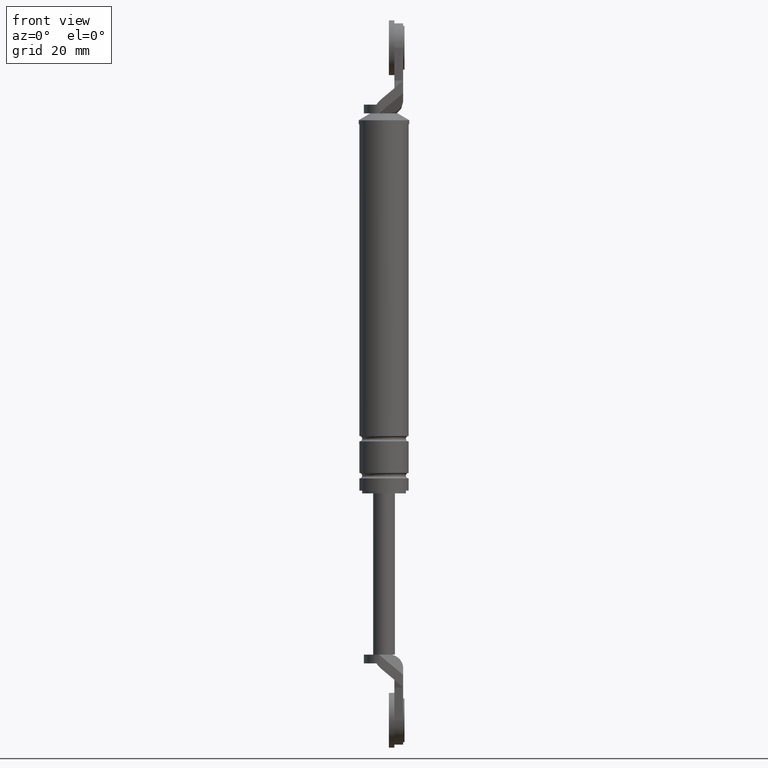
[diagram: clean part render]
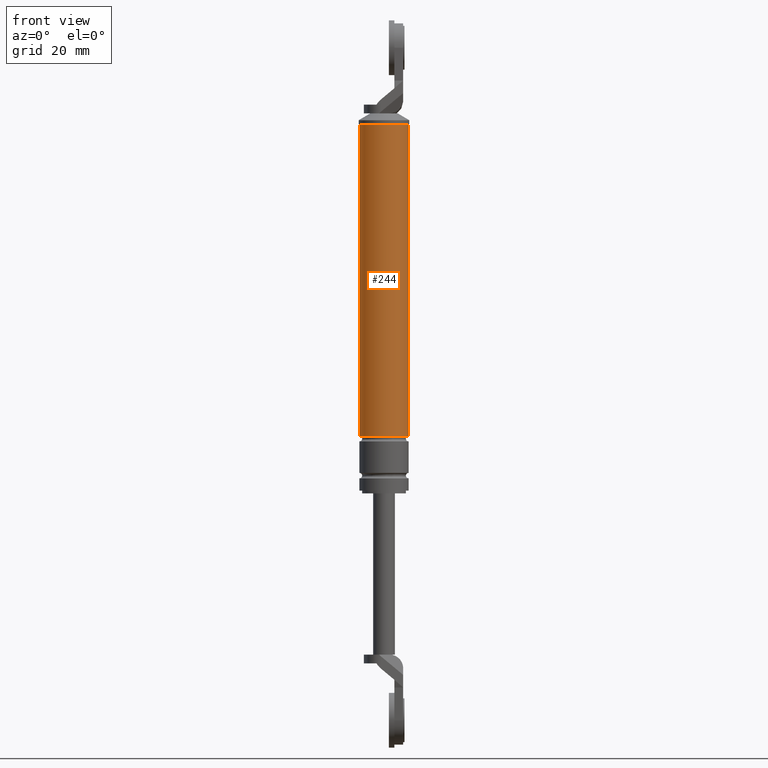
[diagram: same view with one face highlighted and labeled with its STEP entity id]
A machine part, front view. The second image highlights one B-rep face of the part: STEP entity #244.
In plain terms, the highlighted cylindrical surface (edge-blend (fillet) strip) has radius 9 mm, axis along (0, 0, 1).
Its self-contained STEP definition (entity closure, byte-faithful):
#244=ADVANCED_FACE('',(#695),#694,.T.);
#694=CYLINDRICAL_SURFACE('',#1407,9.00000000000E+000);
#695=FACE_OUTER_BOUND('',#1408,.T.);
#1404=CARTESIAN_POINT('',(0.00000000000E+000,3.58204186421E-014,0.00000000000E+000));
#1405=DIRECTION('',(-0.00000000000E+000,-0.00000000000E+000,1.00000000000E+000));
#1406=DIRECTION('',(1.00000000000E+000,-0.00000000000E+000,-0.00000000000E+000));
#1407=AXIS2_PLACEMENT_3D('',#1404,#1405,#1406);
#1408=EDGE_LOOP('',(#1954,#1955,#1956,#1957));
#1954=ORIENTED_EDGE('',*,*,#2264,.F.);
#1955=ORIENTED_EDGE('',*,*,#2261,.T.);
#1956=ORIENTED_EDGE('',*,*,#2215,.T.);
#1957=ORIENTED_EDGE('',*,*,#2263,.F.);
#2215=EDGE_CURVE('',#2743,#2744,#2745,.T.);
#2261=EDGE_CURVE('',#3046,#2743,#3047,.T.);
#2263=EDGE_CURVE('',#3053,#2744,#3060,.T.);
#2264=EDGE_CURVE('',#3046,#3053,#3066,.T.);
#2743=VERTEX_POINT('',#3920);
#2744=VERTEX_POINT('',#3921);
#2745=CIRCLE('',#3925,9.00000000000E+000);
#3046=VERTEX_POINT('',#4103);
#3047=(BOUNDED_CURVE() B_SPLINE_CURVE(1,(#4104,#4105),.UNSPECIFIED.,.F.,.F.) B_SPLINE_CURVE_WITH_KNOTS((2,2),(7.46268656100E-002,9.25373134135E-001),.UNSPECIFIED.) CURVE() GEOMETRIC_REPRESENTATION_ITEM() RATIONAL_B_SPLINE_CURVE((1.00000000000E+000,1.00000000000E+000)) REPRESENTATION_ITEM('') );
#3053=VERTEX_POINT('',#4106);
#3060=(BOUNDED_CURVE() B_SPLINE_CURVE(1,(#4111,#4112),.UNSPECIFIED.,.F.,.F.) B_SPLINE_CURVE_WITH_KNOTS((2,2),(7.46268656716E-002,9.25373134328E-001),.UNSPECIFIED.) CURVE() GEOMETRIC_REPRESENTATION_ITEM() RATIONAL_B_SPLINE_CURVE((7.50000000000E-001,7.50000000000E-001)) REPRESENTATION_ITEM('') );
#3066=CIRCLE('',#4116,9.00000000000E+000);
#3920=CARTESIAN_POINT('',(9.00000000000E+000,3.61192557345E-014,8.49999850000E+001));
#3921=CARTESIAN_POINT('',(-9.00000000000E+000,3.58204186421E-014,8.49999850000E+001));
#3922=CARTESIAN_POINT('',(0.00000000000E+000,3.58204186421E-014,8.49999850000E+001));
#3923=DIRECTION('',(-0.00000000000E+000,0.00000000000E+000,-1.00000000000E+000));
#3924=DIRECTION('',(-1.00000000000E+000,-1.22460635382E-016,0.00000000000E+000));
#3925=AXIS2_PLACEMENT_3D('',#3922,#3923,#3924);
#4103=CARTESIAN_POINT('',(9.00000000000E+000,3.61192557345E-014,-2.90000150000E+001));
#4104=CARTESIAN_POINT('',(9.00000000000E+000,3.58204186421E-014,-2.90000150083E+001));
#4105=CARTESIAN_POINT('',(9.00000000000E+000,3.58204186421E-014,8.49999849741E+001));
#4106=CARTESIAN_POINT('',(-9.00000000000E+000,3.58204186421E-014,-2.90000150000E+001));
#4111=CARTESIAN_POINT('',(-9.00000000000E+000,3.52310773148E-014,-2.90000150000E+001));
#4112=CARTESIAN_POINT('',(-9.00000000000E+000,3.52310773148E-014,8.49999850000E+001));
#4113=CARTESIAN_POINT('',(0.00000000000E+000,3.58204186421E-014,-2.90000150000E+001));
#4114=DIRECTION('',(-0.00000000000E+000,0.00000000000E+000,-1.00000000000E+000));
#4115=DIRECTION('',(-1.00000000000E+000,-1.22460635382E-016,0.00000000000E+000));
#4116=AXIS2_PLACEMENT_3D('',#4113,#4114,#4115);